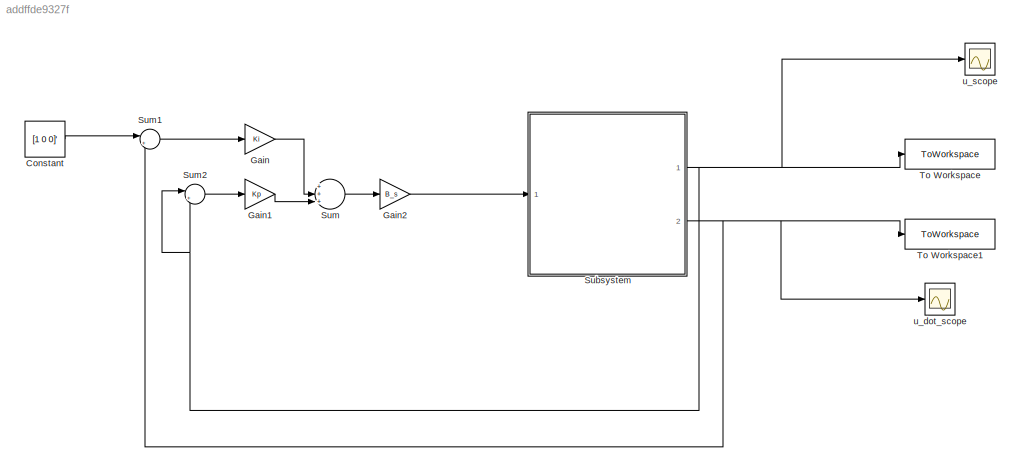
MODEL slx_addffde9327f
KIND model
CONFIG AbsTol = auto
CONFIG EnableMultiTasking = off
CONFIG FixedStep = auto
CONFIG MaxStep = auto
CONFIG MinStep = auto
CONFIG RelTol = 1e-3
CONFIG SampleTimeConstraint = Unconstrained
CONFIG SolverName = VariableStepAuto
CONFIG StartTime = 0.0
CONFIG StopTime = 10.0
WORKSPACE source: mxarray member
WORKSPACE Ki = 3
WORKSPACE Kp = 1
WORKSPACE ic = [0 0 0 0 0 0]
WORKSPACE param = [9.81 0.05 0.2 0.2 0.1 0.01 0.01 1 1 1 1 1 ... (13 elements, 1x13)]
BLOCK [Constant] Constant
  Value = [1 0 0]'
BLOCK [Gain] Gain
  Gain = Ki
BLOCK [Gain] Gain1
  Gain = Kp
BLOCK [Gain] Gain2
  Gain = B_s
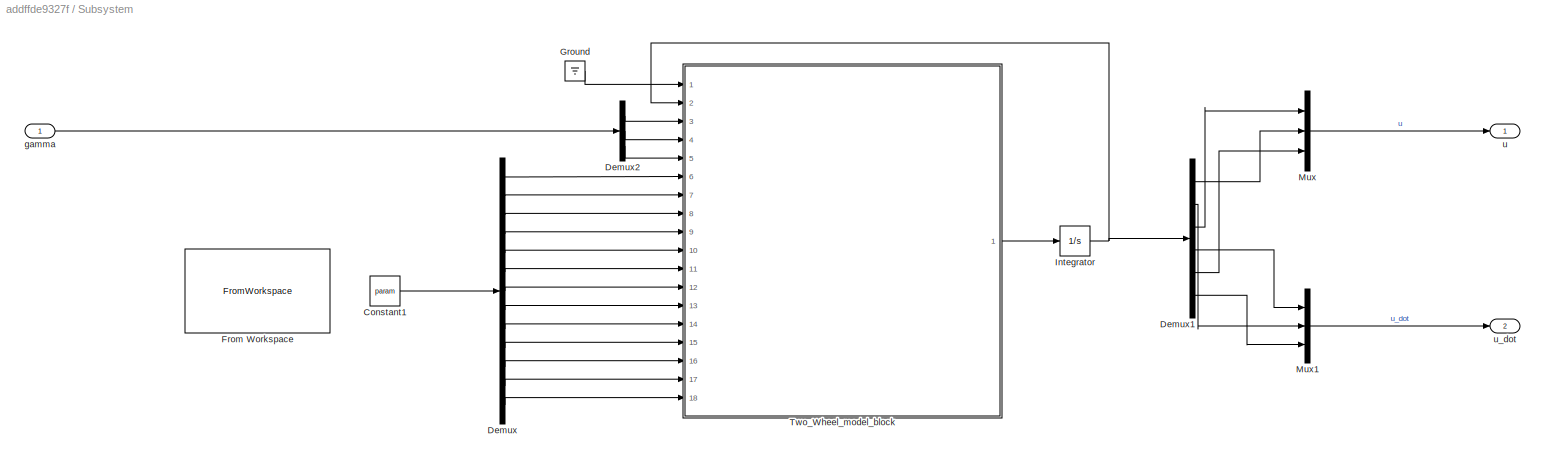
BLOCK [SubSystem] Subsystem
  Ports = [1, 2]
  RequestExecContextInheritance = off
BLOCK [Constant] Subsystem/Constant1
  Value = param
BLOCK [Demux] Subsystem/Demux
  Outputs = 13
  Ports = [1, 13]
BLOCK [Demux] Subsystem/Demux1
  Outputs = 6
  Ports = [1, 6]
BLOCK [Demux] Subsystem/Demux2
  Outputs = 3
  Ports = [1, 3]
BLOCK [FromWorkspace] Subsystem/From Workspace
  Commented = on
  VariableName = simin
BLOCK [Ground] Subsystem/Ground
BLOCK [Integrator] Subsystem/Integrator
  InitialCondition = ic
  Ports = [1, 1]
BLOCK [Mux] Subsystem/Mux
  DisplayOption = bar
  Inputs = 3
  Ports = [3, 1]
BLOCK [Mux] Subsystem/Mux1
  DisplayOption = bar
  Inputs = 3
  Ports = [3, 1]
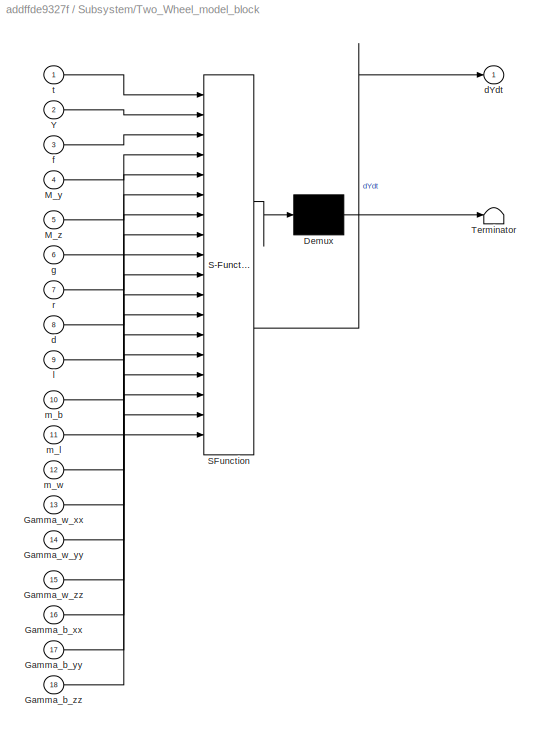
BLOCK [SubSystem] Subsystem/Two_Wheel_model_block
  ErrorFcn = Stateflow.Translate.translate
  PermitHierarchicalResolution = ExplicitOnly
  Ports = [18, 1]
  RequestExecContextInheritance = off
  SFBlockType = MATLAB Function
  TreatAsAtomicUnit = on
BLOCK [Demux] Subsystem/Two_Wheel_model_block/ Demux 
  Outputs = 1
  Ports = [1, 1]
BLOCK [S-Function] Subsystem/Two_Wheel_model_block/ SFunction 
  EnableBusSupport = on
  FunctionName = sf_sfun
  PortCounts = [18 2]
  Ports = [18, 2]
  SFcnIsStateOwnerBlock = off
  SFunctionDeploymentMode = off
  Tag = Stateflow S-Function 2
BLOCK [Terminator] Subsystem/Two_Wheel_model_block/ Terminator 
BLOCK [Inport] Subsystem/Two_Wheel_model_block/Gamma_b_xx
  Port = 16
BLOCK [Inport] Subsystem/Two_Wheel_model_block/Gamma_b_yy
  Port = 17
BLOCK [Inport] Subsystem/Two_Wheel_model_block/Gamma_b_zz
  Port = 18
BLOCK [Inport] Subsystem/Two_Wheel_model_block/Gamma_w_xx
  Port = 13
BLOCK [Inport] Subsystem/Two_Wheel_model_block/Gamma_w_yy
  Port = 14
BLOCK [Inport] Subsystem/Two_Wheel_model_block/Gamma_w_zz
  Port = 15
BLOCK [Inport] Subsystem/Two_Wheel_model_block/M_y
  Port = 4
BLOCK [Inport] Subsystem/Two_Wheel_model_block/M_z
  Port = 5
BLOCK [Inport] Subsystem/Two_Wheel_model_block/Y
  Port = 2
BLOCK [Inport] Subsystem/Two_Wheel_model_block/d
  Port = 8
BLOCK [Outport] Subsystem/Two_Wheel_model_block/dYdt
BLOCK [Inport] Subsystem/Two_Wheel_model_block/f
  Port = 3
BLOCK [Inport] Subsystem/Two_Wheel_model_block/g
  Port = 6
BLOCK [Inport] Subsystem/Two_Wheel_model_block/l
  Port = 9
BLOCK [Inport] Subsystem/Two_Wheel_model_block/m_b
  Port = 10
BLOCK [Inport] Subsystem/Two_Wheel_model_block/m_l
  Port = 11
BLOCK [Inport] Subsystem/Two_Wheel_model_block/m_w
  Port = 12
BLOCK [Inport] Subsystem/Two_Wheel_model_block/r
  Port = 7
BLOCK [Inport] Subsystem/Two_Wheel_model_block/t
BLOCK [Inport] Subsystem/gamma
BLOCK [Outport] Subsystem/u
BLOCK [Outport] Subsystem/u_dot
  Port = 2
BLOCK [Sum] Sum
  Inputs = +++||
  Ports = [3, 1]
BLOCK [Sum] Sum1
  Inputs = |+-
  Ports = [2, 1]
BLOCK [Sum] Sum2
  Inputs = |+-
  Ports = [2, 1]
BLOCK [ToWorkspace] To Workspace
  FixptAsFi = on
  MaxDataPoints = inf
  Ports = [1]
  SampleTime = -1
  SaveFormat = Timeseries
  VariableName = u
BLOCK [ToWorkspace] To Workspace1
  FixptAsFi = on
  MaxDataPoints = inf
  Ports = [1]
  SampleTime = -1
  SaveFormat = Timeseries
  VariableName = u_dot
BLOCK [Scope] u_dot_scope
  Floating = off
  NumInputPorts = 1
  Ports = [1]
  ScopeSpecificationString = Simulink.scopes.TimeScopeBlockCfg('CurrentConfiguration', extmgr.ConfigurationSet(extmgr.Configuration('Core','General UI',true),extmgr.Configuration('Core','Source UI',true),extmgr.Configuration('Sources','WiredSimulink',true,'DataLoggingVariableName','ScopeData1'),extmgr.Configuration('Visuals','Time Domain',true,'SerializedDisplays',{struct('MinYLimReal','-2.11508','MaxYLimReal','0.2628','YLabe...<+1510ch>
BLOCK [Scope] u_scope
  Floating = off
  NumInputPorts = 1
  Ports = [1]
  ScopeSpecificationString = Simulink.scopes.TimeScopeBlockCfg('CurrentConfiguration', extmgr.ConfigurationSet(extmgr.Configuration('Core','General UI',true),extmgr.Configuration('Core','Source UI',true),extmgr.Configuration('Sources','WiredSimulink',true),extmgr.Configuration('Visuals','Time Domain',true,'SerializedDisplays',{struct('MinYLimReal','-1.66836','MaxYLimReal','0.32426','YLabelReal','','MinYLimMag','0.00000','MaxY...<+1460ch>
LINE Constant:1 -> Sum1:1
LINE Gain1:1 -> Sum:3
LINE Gain2:1 -> Subsystem:1
LINE Gain:1 -> Sum:2
LINE Subsystem/Constant1:1 -> Subsystem/Demux:1
LINE Subsystem/Demux1:1 -> Subsystem/Mux:2
LINE Subsystem/Demux1:2 -> Subsystem/Mux1:2
LINE Subsystem/Demux1:3 -> Subsystem/Mux:1
LINE Subsystem/Demux1:4 -> Subsystem/Mux1:1
LINE Subsystem/Demux1:5 -> Subsystem/Mux:3
LINE Subsystem/Demux1:6 -> Subsystem/Mux1:3
LINE Subsystem/Demux2:1 -> Subsystem/Two_Wheel_model_block:3
LINE Subsystem/Demux2:2 -> Subsystem/Two_Wheel_model_block:4
LINE Subsystem/Demux2:3 -> Subsystem/Two_Wheel_model_block:5
LINE Subsystem/Demux:1 -> Subsystem/Two_Wheel_model_block:6
LINE Subsystem/Demux:10 -> Subsystem/Two_Wheel_model_block:15
LINE Subsystem/Demux:11 -> Subsystem/Two_Wheel_model_block:16
LINE Subsystem/Demux:12 -> Subsystem/Two_Wheel_model_block:17
LINE Subsystem/Demux:13 -> Subsystem/Two_Wheel_model_block:18
LINE Subsystem/Demux:2 -> Subsystem/Two_Wheel_model_block:7
LINE Subsystem/Demux:3 -> Subsystem/Two_Wheel_model_block:8
LINE Subsystem/Demux:4 -> Subsystem/Two_Wheel_model_block:9
LINE Subsystem/Demux:5 -> Subsystem/Two_Wheel_model_block:10
LINE Subsystem/Demux:6 -> Subsystem/Two_Wheel_model_block:11
LINE Subsystem/Demux:7 -> Subsystem/Two_Wheel_model_block:12
LINE Subsystem/Demux:8 -> Subsystem/Two_Wheel_model_block:13
LINE Subsystem/Demux:9 -> Subsystem/Two_Wheel_model_block:14
LINE Subsystem/Ground:1 -> Subsystem/Two_Wheel_model_block:1
NET Subsystem/Integrator:1 -> Subsystem/Demux1:1, Subsystem/Two_Wheel_model_block:2
LINE Subsystem/Mux1:1 -> Subsystem/u_dot:1
LINE Subsystem/Mux:1 -> Subsystem/u:1
LINE Subsystem/Two_Wheel_model_block:1 -> Subsystem/Integrator:1
LINE Subsystem/gamma:1 -> Subsystem/Demux2:1
NET Subsystem:1 -> Sum2:1, Sum2:2, To Workspace:1, u_scope:1
NET Subsystem:2 -> Sum1:2, To Workspace1:1, u_dot_scope:1
LINE Sum1:1 -> Gain:1
LINE Sum2:1 -> Gain1:1
LINE Sum:1 -> Gain2:1
note: NET lines group one-source signal fan-out (src -> all destinations, sorted); 1:1 wires keep LINE
CHART Subsystem/Two_Wheel_model_block states=1 transitions=1
  STATE_LABEL 'eML_blk_kernel()'
  STATE_LABEL 'SCRIPT:\nfunction dYdt = Two_Wheel_model_block(t,Y,f,M_y,M_z,g,r,d,l,m_b,m_l,m_w,Gamma_w_xx,Gamma_w_yy,Gamma_w_zz,Gamma_b_xx,Gamma_b_yy,Gamma_b_zz)\n%#codegen\n\n%    This function was generated by the Symbolic Math Toolbox version 9.0.\n%    14-Sep-2022 15:36:12\n\nt2 = Y(1);\nt3 = d.^2;\nt4 = l.^2;\nt5 = m_w.^2;\nt6 = r.^2;\nt7 = Gamma_b_yy.*Gamma_w_yy;\nt8 = sin(t2);\nt9 = Gamma_w_yy.*m_w.*t4;\nt10 = Gamma_b_...<+350ch>'
CHART  states=0 transitions=0
